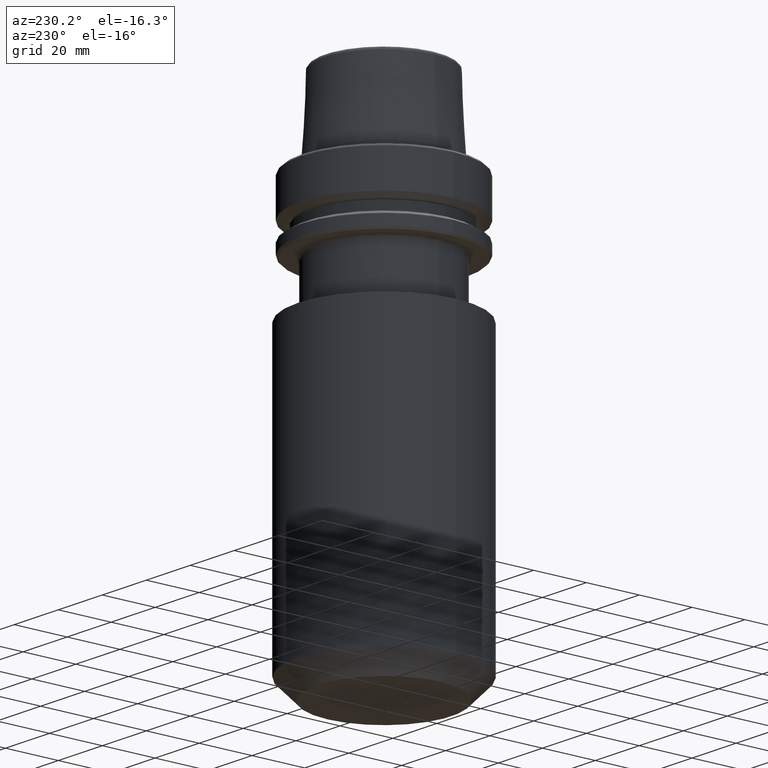
[diagram: clean part render]
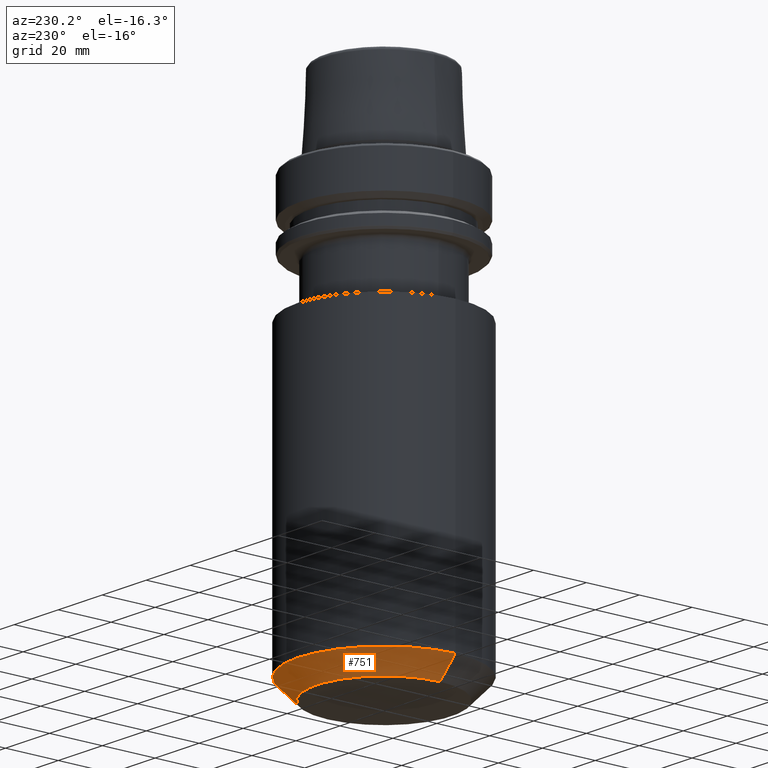
[diagram: same view with one face highlighted and labeled with its STEP entity id]
A machine part, auxiliary view. The second image highlights one B-rep face of the part: STEP entity #751.
In plain terms, the highlighted conical surface has half-angle 45 deg.
Its self-contained STEP definition (entity closure, byte-faithful):
#33 = CIRCLE ( 'NONE', #785, 25.50000000000000000 ) ;
#39 = EDGE_LOOP ( 'NONE', ( #1301, #944, #1204, #487 ) ) ;
#64 = CARTESIAN_POINT ( 'NONE',  ( 32.50000000000000000, 0.0000000000000000000, -153.0000000000000000 ) ) ;
#86 = DIRECTION ( 'NONE',  ( -0.0000000000000000000, -0.0000000000000000000, 1.000000000000000000 ) ) ;
#91 = CARTESIAN_POINT ( 'NONE',  ( 0.0000000000000000000, 0.0000000000000000000, -160.0000000000000000 ) ) ;
#140 = CONICAL_SURFACE ( 'NONE', #1075, 25.50000000000000000, 0.7853981633974480600 ) ;
#162 = EDGE_CURVE ( 'NONE', #1037, #1213, #603, .T. ) ;
#170 = FACE_OUTER_BOUND ( 'NONE', #39, .T. ) ;
#201 = LINE ( 'NONE', #1119, #1275 ) ;
#254 = CARTESIAN_POINT ( 'NONE',  ( -25.50000000000000000, 3.551475717527324000E-015, -160.0000000000000000 ) ) ;
#485 = VERTEX_POINT ( 'NONE', #1166 ) ;
#487 = ORIENTED_EDGE ( 'NONE', *, *, #712, .F. ) ;
#496 = DIRECTION ( 'NONE',  ( -0.0000000000000000000, -0.0000000000000000000, 1.000000000000000000 ) ) ;
#520 = CIRCLE ( 'NONE', #977, 32.50000000000000000 ) ;
#539 = DIRECTION ( 'NONE',  ( -0.0000000000000000000, -0.0000000000000000000, 1.000000000000000000 ) ) ;
#543 = CARTESIAN_POINT ( 'NONE',  ( -25.50000000000000000, 3.122849337825750200E-015, -160.0000000000000000 ) ) ;
#585 = CARTESIAN_POINT ( 'NONE',  ( -32.50000000000000000, 3.980102097228898600E-015, -153.0000000000000000 ) ) ;
#603 = LINE ( 'NONE', #543, #775 ) ;
#712 = EDGE_CURVE ( 'NONE', #485, #1129, #201, .T. ) ;
#751 = ADVANCED_FACE ( 'NONE', ( #170 ), #140, .T. ) ;
#775 = VECTOR ( 'NONE', #1067, 999.9999999999998900 ) ;
#785 = AXIS2_PLACEMENT_3D ( 'NONE', #1117, #496, #1218 ) ;
#901 = EDGE_CURVE ( 'NONE', #1129, #1213, #520, .T. ) ;
#906 = DIRECTION ( 'NONE',  ( 0.7071067811865473500, 0.0000000000000000000, 0.7071067811865477900 ) ) ;
#944 = ORIENTED_EDGE ( 'NONE', *, *, #162, .T. ) ;
#977 = AXIS2_PLACEMENT_3D ( 'NONE', #1158, #539, #1266 ) ;
#1037 = VERTEX_POINT ( 'NONE', #254 ) ;
#1067 = DIRECTION ( 'NONE',  ( -0.7071067811865473500, 8.659560562354931600E-017, 0.7071067811865477900 ) ) ;
#1075 = AXIS2_PLACEMENT_3D ( 'NONE', #91, #86, #1330 ) ;
#1117 = CARTESIAN_POINT ( 'NONE',  ( 0.0000000000000000000, 0.0000000000000000000, -160.0000000000000000 ) ) ;
#1119 = CARTESIAN_POINT ( 'NONE',  ( 25.50000000000000000, 0.0000000000000000000, -160.0000000000000000 ) ) ;
#1129 = VERTEX_POINT ( 'NONE', #64 ) ;
#1158 = CARTESIAN_POINT ( 'NONE',  ( 0.0000000000000000000, 0.0000000000000000000, -153.0000000000000000 ) ) ;
#1166 = CARTESIAN_POINT ( 'NONE',  ( 25.50000000000000000, 0.0000000000000000000, -160.0000000000000000 ) ) ;
#1198 = EDGE_CURVE ( 'NONE', #485, #1037, #33, .T. ) ;
#1204 = ORIENTED_EDGE ( 'NONE', *, *, #901, .F. ) ;
#1213 = VERTEX_POINT ( 'NONE', #585 ) ;
#1218 = DIRECTION ( 'NONE',  ( 1.000000000000000000, 0.0000000000000000000, 0.0000000000000000000 ) ) ;
#1266 = DIRECTION ( 'NONE',  ( 1.000000000000000000, 0.0000000000000000000, 0.0000000000000000000 ) ) ;
#1275 = VECTOR ( 'NONE', #906, 999.9999999999998900 ) ;
#1301 = ORIENTED_EDGE ( 'NONE', *, *, #1198, .T. ) ;
#1330 = DIRECTION ( 'NONE',  ( 1.000000000000000000, 0.0000000000000000000, 0.0000000000000000000 ) ) ;